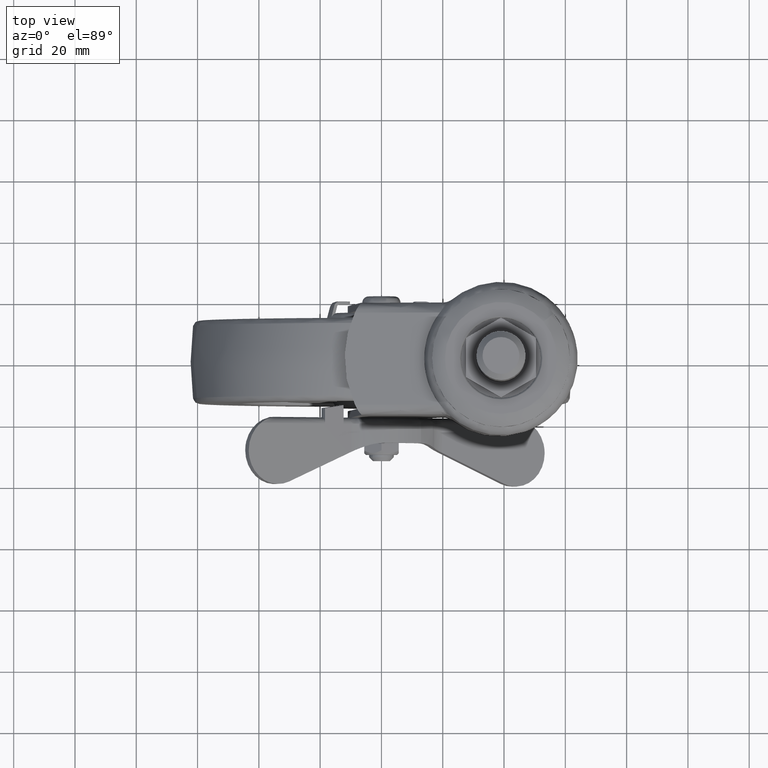
[diagram: clean part render]
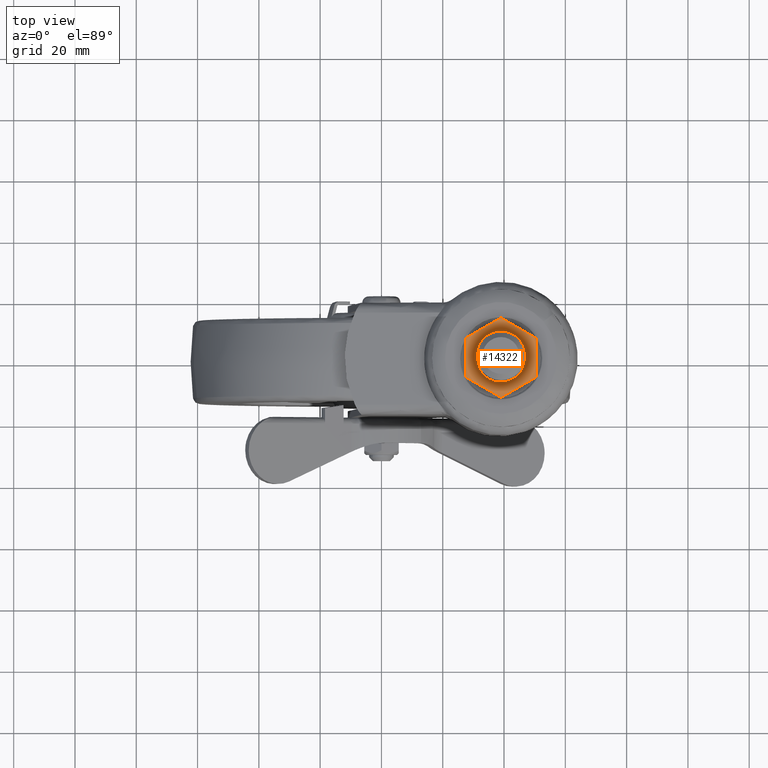
[diagram: same view with one face highlighted and labeled with its STEP entity id]
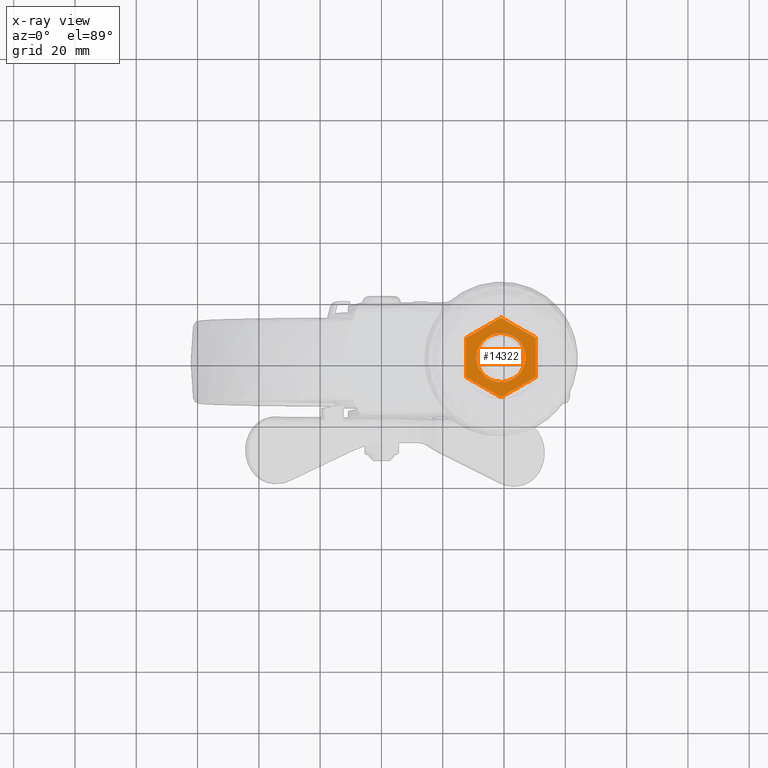
[diagram: x-ray of the same camera — body ghosted, the highlighted face saturated]
A machine part, top view. The second image highlights one B-rep face of the part: STEP entity #14322.
The next image is the same camera in x-ray: the body ghosted, the highlighted face saturated — about 4% of this face is hidden behind the body in this view.
In plain terms, the highlighted face is a freeform B-spline surface patch.
Its self-contained STEP definition (entity closure, byte-faithful):
#12915=CARTESIAN_POINT('',(44.802994516573790,-5.506836220896645,89.500003999999990));
#12916=VERTEX_POINT('',#12915);
#12922=CARTESIAN_POINT('',(47.0,0.0,89.500003999999990));
#12923=VERTEX_POINT('',#12922);
#12924=CARTESIAN_POINT('',(47.0,0.0,89.500003999999990));
#12925=CARTESIAN_POINT('',(47.000092512026313,-0.569423789633215,89.500003999999777));
#12926=CARTESIAN_POINT('',(46.884649651563777,-1.644915996552031,89.500004000000260));
#12927=CARTESIAN_POINT('',(46.267489402958773,-3.582790709943877,89.500003999999649));
#12928=CARTESIAN_POINT('',(45.456926268918373,-4.818883082274776,89.500004000000374));
#12929=CARTESIAN_POINT('',(44.802994516573790,-5.506836220896645,89.500003999999990));
#12930=B_SPLINE_CURVE_WITH_KNOTS('',3,(#12924,#12925,#12926,#12927,#12928,#12929),.UNSPECIFIED.,.F.,.U.,(4,1,1,4),(0.000000053737669,1.708254715424052,3.226676201192028,6.073781215823818),.UNSPECIFIED.);
#12931=EDGE_CURVE('',#12923,#12916,#12930,.T.);
#12933=CARTESIAN_POINT('',(39.000002372460031,7.999999999999648,89.500003999999990));
#12934=VERTEX_POINT('',#12933);
#12935=CARTESIAN_POINT('',(39.000002372460031,7.999999999999648,89.500003999999990));
#12936=CARTESIAN_POINT('',(39.883672036831499,8.000621972231087,89.500003999999734));
#12937=CARTESIAN_POINT('',(41.290385251184553,7.764307363893719,89.500004000000317));
#12938=CARTESIAN_POINT('',(43.173958125043917,6.901639255222571,89.500003999999834));
#12939=CARTESIAN_POINT('',(44.407182029816731,5.963275009063808,89.500004000000288));
#12940=CARTESIAN_POINT('',(45.457275868517023,4.790220068632080,89.500003999999691));
#12941=CARTESIAN_POINT('',(46.189408028146637,3.618201275907512,89.500004000001368));
#12942=CARTESIAN_POINT('',(46.827783103342497,1.963346774721963,89.500003999998995));
#12943=CARTESIAN_POINT('',(47.000301420622748,0.752709808129723,89.500004000000317));
#12944=CARTESIAN_POINT('',(47.0,0.0,89.500003999999990));
#12945=B_SPLINE_CURVE_WITH_KNOTS('',3,(#12935,#12936,#12937,#12938,#12939,#12940,#12941,#12942,#12943,#12944),.UNSPECIFIED.,.F.,.U.,(4,1,1,1,1,1,1,4),(0.000000231908206,2.650723320482024,4.221551198469296,6.185118510136570,7.264944995054197,8.933946348139955,10.308421314887640,12.566448125851270),.UNSPECIFIED.);
#12946=EDGE_CURVE('',#12934,#12923,#12945,.T.);
#12948=CARTESIAN_POINT('',(32.891555208884228,5.165935818007223,89.500003999999990));
#12949=VERTEX_POINT('',#12948);
#12950=CARTESIAN_POINT('',(32.891555208884228,5.165935818007223,89.500003999999990));
#12951=CARTESIAN_POINT('',(33.288860690056353,5.635920961294215,89.500004000000004));
#12952=CARTESIAN_POINT('',(33.980055843535808,6.283922052551908,89.500004000000018));
#12953=CARTESIAN_POINT('',(35.408639568032491,7.213964095676072,89.500004000000217));
#12954=CARTESIAN_POINT('',(37.008965866239642,7.840683621956215,89.500003999999379));
#12955=CARTESIAN_POINT('',(38.384610444830642,8.000067267898299,89.500004000000473));
#12956=CARTESIAN_POINT('',(39.000002372460031,7.999999999999648,89.500003999999990));
#12957=B_SPLINE_CURVE_WITH_KNOTS('',3,(#12950,#12951,#12952,#12953,#12954,#12955,#12956),.UNSPECIFIED.,.F.,.U.,(4,1,1,1,4),(0.000000071460419,1.846220179414449,2.823640415578038,5.104248502846591,6.950468610840777),.UNSPECIFIED.);
#12958=EDGE_CURVE('',#12949,#12934,#12957,.T.);
#12998=CARTESIAN_POINT('',(31.0,0.0,89.500003999999990));
#12999=VERTEX_POINT('',#12998);
#13000=CARTESIAN_POINT('',(31.0,0.0,89.500003999999990));
#13001=CARTESIAN_POINT('',(30.999820355080100,0.672760917095342,89.500004000000132));
#13002=CARTESIAN_POINT('',(31.166981861540449,1.988930150587743,89.500003999999919));
#13003=CARTESIAN_POINT('',(31.854013649124880,3.744944013165283,89.500004000000089));
#13004=CARTESIAN_POINT('',(32.532634924737913,4.741634568377576,89.500003999999890));
#13005=CARTESIAN_POINT('',(32.891555208884228,5.165935818007223,89.500003999999990));
#13006=B_SPLINE_CURVE_WITH_KNOTS('',3,(#13000,#13001,#13002,#13003,#13004,#13005),.UNSPECIFIED.,.F.,.U.,(4,1,1,4),(0.000000041065740,2.018248397259203,3.948734703176682,5.615985432354449),.UNSPECIFIED.);
#13007=EDGE_CURVE('',#12999,#12949,#13006,.T.);
#13009=CARTESIAN_POINT('',(38.999997627539877,-7.999999999999648,89.500003999999990));
#13010=VERTEX_POINT('',#13009);
#13011=CARTESIAN_POINT('',(38.999997627539877,-7.999999999999648,89.500003999999990));
#13012=CARTESIAN_POINT('',(38.410945577750837,-8.000084455694189,89.500003999999890));
#13013=CARTESIAN_POINT('',(37.134696778587113,-7.858493290821926,89.500003999999876));
#13014=CARTESIAN_POINT('',(35.305634698135023,-7.191520171920870,89.500004000000899));
#13015=CARTESIAN_POINT('',(33.592778857593558,-6.016291300248915,89.500003999998015));
#13016=CARTESIAN_POINT('',(32.255381856064830,-4.465948132354507,89.500004000001624));
#13017=CARTESIAN_POINT('',(31.257504605099950,-2.421357192003411,89.500003999998640));
#13018=CARTESIAN_POINT('',(30.999456334234829,-0.883628701980438,89.500004000000402));
#13019=CARTESIAN_POINT('',(31.0,0.0,89.500003999999990));
#13020=B_SPLINE_CURVE_WITH_KNOTS('',3,(#13011,#13012,#13013,#13014,#13015,#13016,#13017,#13018,#13019),.UNSPECIFIED.,.F.,.U.,(4,1,1,1,1,1,4),(0.000000231906666,1.767153193472378,3.828855671022186,5.792374517980217,7.952167753872335,9.915725950462814,12.566448125851220),.UNSPECIFIED.);
#13021=EDGE_CURVE('',#13010,#12999,#13020,.T.);
#13023=CARTESIAN_POINT('',(44.802994516573790,-5.506836220896645,89.500003999999990));
#13024=CARTESIAN_POINT('',(44.360816112701507,-5.972979822356863,89.500004000000018));
#13025=CARTESIAN_POINT('',(43.310906096412488,-6.841359745412269,89.500003999999990));
#13026=CARTESIAN_POINT('',(41.333099391463392,-7.766431357906897,89.500004000000104));
#13027=CARTESIAN_POINT('',(39.811622291428613,-8.000383637339597,89.500003999999848));
#13028=CARTESIAN_POINT('',(38.999997627539877,-7.999999999999648,89.500003999999990));
#13029=B_SPLINE_CURVE_WITH_KNOTS('',3,(#13023,#13024,#13025,#13026,#13027,#13028),.UNSPECIFIED.,.F.,.U.,(4,1,1,4),(0.000000066163141,1.927514731448252,4.057917967943958,6.492670417194497),.UNSPECIFIED.);
#13030=EDGE_CURVE('',#12916,#13010,#13029,.T.);
#14161=CARTESIAN_POINT('',(27.600000000000001,-6.418207000000001,89.500003999999990));
#14162=VERTEX_POINT('',#14161);
#14168=CARTESIAN_POINT('',(27.600000000000001,6.418206999999880,89.500003999999990));
#14169=VERTEX_POINT('',#14168);
#14170=CARTESIAN_POINT('',(27.600000000000001,-6.418207000000001,89.500003999999990));
#14171=CARTESIAN_POINT('',(27.600000000000001,6.418206999999880,89.500003999999990));
#14172=QUASI_UNIFORM_CURVE('',1,(#14170,#14171),.UNSPECIFIED.,.F.,.U.);
#14173=EDGE_CURVE('',#14162,#14169,#14172,.T.);
#14189=CARTESIAN_POINT('',(39.0,-13.0,89.500003999999990));
#14190=VERTEX_POINT('',#14189);
#14196=CARTESIAN_POINT('',(39.0,-13.0,89.500003999999990));
#14197=CARTESIAN_POINT('',(27.600000000000001,-6.418207000000001,89.500003999999990));
#14198=QUASI_UNIFORM_CURVE('',1,(#14196,#14197),.UNSPECIFIED.,.F.,.U.);
#14199=EDGE_CURVE('',#14190,#14162,#14198,.T.);
#14211=CARTESIAN_POINT('',(50.399999999999999,-6.418207000000001,89.500003999999990));
#14212=VERTEX_POINT('',#14211);
#14218=CARTESIAN_POINT('',(50.399999999999999,-6.418207000000001,89.500003999999990));
#14219=CARTESIAN_POINT('',(39.0,-13.0,89.500003999999990));
#14220=QUASI_UNIFORM_CURVE('',1,(#14218,#14219),.UNSPECIFIED.,.F.,.U.);
#14221=EDGE_CURVE('',#14212,#14190,#14220,.T.);
#14233=CARTESIAN_POINT('',(50.399999999999999,6.418206999999880,89.500003999999990));
#14234=VERTEX_POINT('',#14233);
#14240=CARTESIAN_POINT('',(50.399999999999999,6.418206999999880,89.500003999999990));
#14241=CARTESIAN_POINT('',(50.399999999999999,-6.418207000000001,89.500003999999990));
#14242=QUASI_UNIFORM_CURVE('',1,(#14240,#14241),.UNSPECIFIED.,.F.,.U.);
#14243=EDGE_CURVE('',#14234,#14212,#14242,.T.);
#14255=CARTESIAN_POINT('',(39.0,13.0,89.500003999999990));
#14256=VERTEX_POINT('',#14255);
#14262=CARTESIAN_POINT('',(39.0,13.0,89.500003999999990));
#14263=CARTESIAN_POINT('',(50.399999999999999,6.418206999999880,89.500003999999990));
#14264=QUASI_UNIFORM_CURVE('',1,(#14262,#14263),.UNSPECIFIED.,.F.,.U.);
#14265=EDGE_CURVE('',#14256,#14234,#14264,.T.);
#14278=CARTESIAN_POINT('',(27.600000000000001,6.418206999999880,89.500003999999990));
#14279=CARTESIAN_POINT('',(39.0,13.0,89.500003999999990));
#14280=QUASI_UNIFORM_CURVE('',1,(#14278,#14279),.UNSPECIFIED.,.F.,.U.);
#14281=EDGE_CURVE('',#14169,#14256,#14280,.T.);
#14301=CARTESIAN_POINT('',(51.538861586592269,-14.298699949606959,89.500003999999990));
#14302=CARTESIAN_POINT('',(26.461141063430240,-14.298699949606950,89.500003999999990));
#14303=CARTESIAN_POINT('',(51.538861586592269,14.298700646981301,89.500003999999990));
#14304=CARTESIAN_POINT('',(26.461141063430240,14.298700646981301,89.500003999999990));
#14305=B_SPLINE_SURFACE_WITH_KNOTS('',1,1,((#14301,#14303),(#14302,#14304)),.UNSPECIFIED.,.F.,.F.,.U.,(2,2),(2,2),(0.0,25.077720523162029),(0.0,28.597400596588258),.UNSPECIFIED.);
#14306=ORIENTED_EDGE('',*,*,#14281,.F.);
#14307=ORIENTED_EDGE('',*,*,#14173,.F.);
#14308=ORIENTED_EDGE('',*,*,#14199,.F.);
#14309=ORIENTED_EDGE('',*,*,#14221,.F.);
#14310=ORIENTED_EDGE('',*,*,#14243,.F.);
#14311=ORIENTED_EDGE('',*,*,#14265,.F.);
#14312=EDGE_LOOP('',(#14306,#14307,#14308,#14309,#14310,#14311));
#14313=FACE_OUTER_BOUND('',#14312,.T.);
#14314=ORIENTED_EDGE('',*,*,#12946,.T.);
#14315=ORIENTED_EDGE('',*,*,#12931,.T.);
#14316=ORIENTED_EDGE('',*,*,#13030,.T.);
#14317=ORIENTED_EDGE('',*,*,#13021,.T.);
#14318=ORIENTED_EDGE('',*,*,#13007,.T.);
#14319=ORIENTED_EDGE('',*,*,#12958,.T.);
#14320=EDGE_LOOP('',(#14314,#14315,#14316,#14317,#14318,#14319));
#14321=FACE_BOUND('',#14320,.T.);
#14322=ADVANCED_FACE('',(#14313,#14321),#14305,.F.);